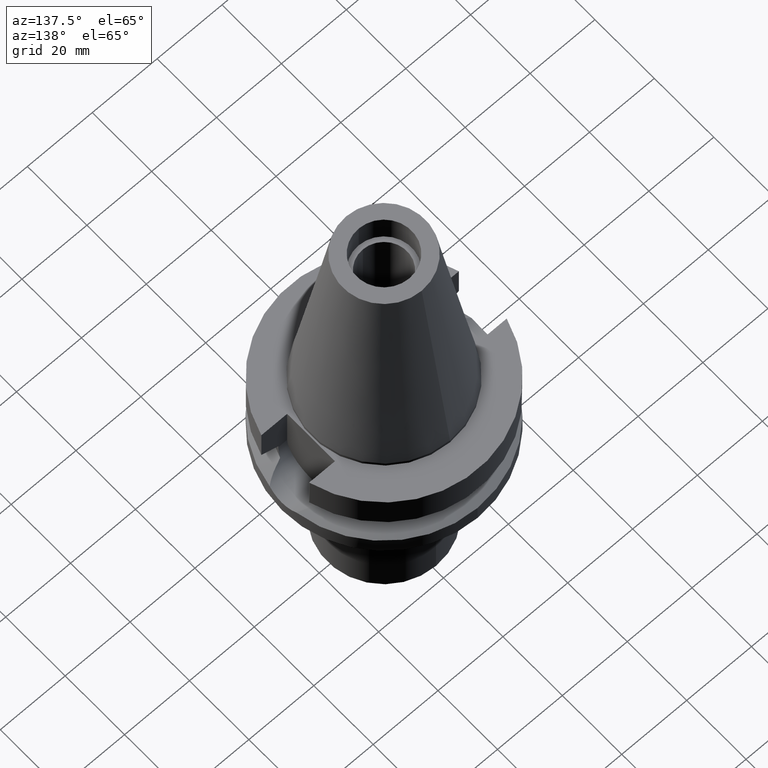
[diagram: clean part render]
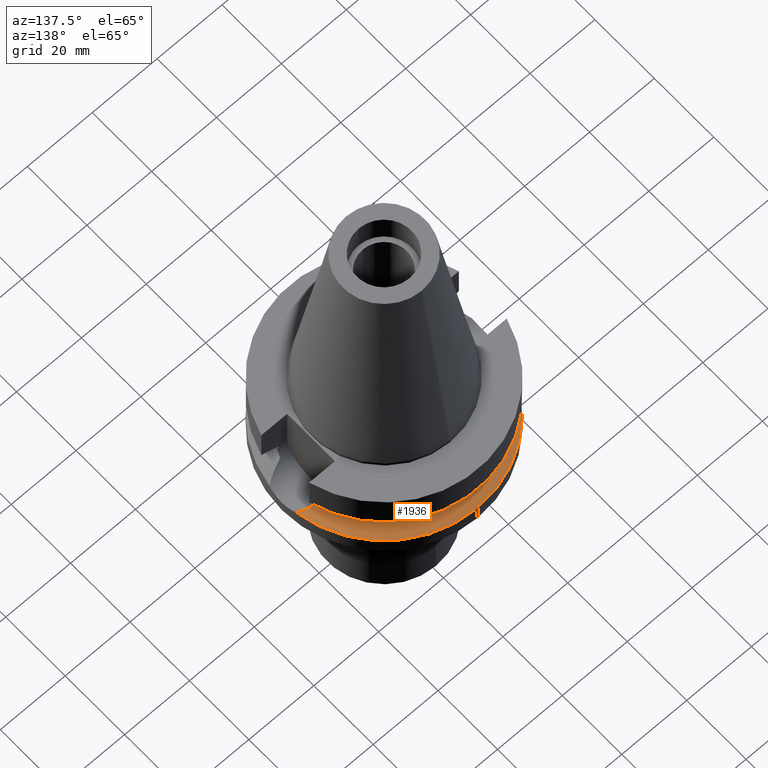
[diagram: same view with one face highlighted and labeled with its STEP entity id]
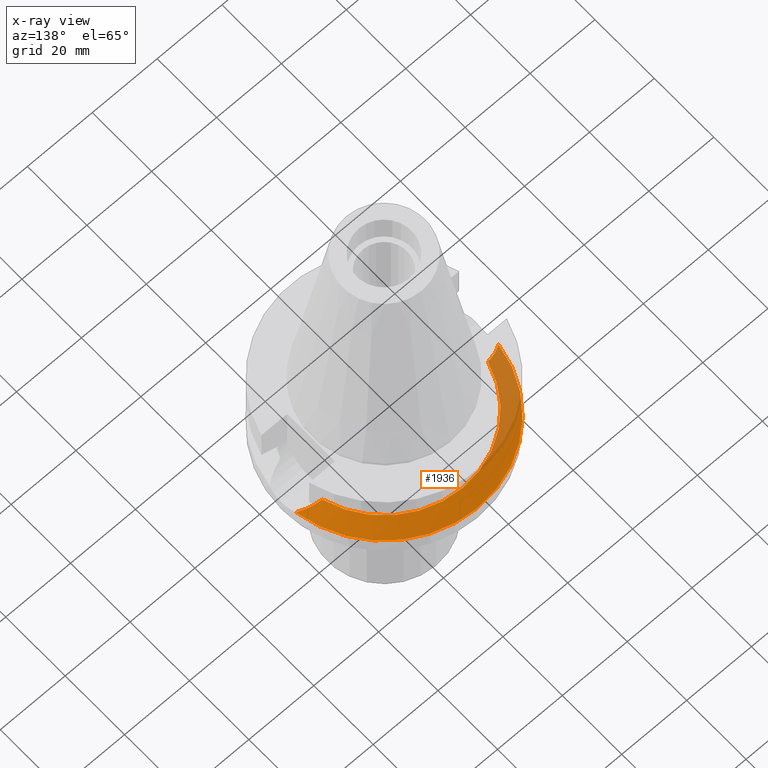
[diagram: x-ray of the same camera — body ghosted, the highlighted face saturated]
A machine part, auxiliary view. The second image highlights one B-rep face of the part: STEP entity #1936.
The next image is the same camera in x-ray: the body ghosted, the highlighted face saturated — about 24% of this face is hidden behind the body in this view.
In plain terms, the highlighted conical surface has half-angle 60 deg.
Its self-contained STEP definition (entity closure, byte-faithful):
#76 = DIRECTION ( 'NONE',  ( 0.0000000000000000000, 0.0000000000000000000, -1.000000000000000000 ) ) ;
#251 = CARTESIAN_POINT ( 'NONE',  ( 31.17899877608999759, 4.485536235554000051, -21.63449434733000132 ) ) ;
#267 = CARTESIAN_POINT ( 'NONE',  ( 29.91906490918152528, 5.320872908750365227, -20.99269629230230549 ) ) ;
#408 = CARTESIAN_POINT ( 'NONE',  ( -28.82825199919142278, 5.891281014482074418, -20.43595458910426999 ) ) ;
#419 = B_SPLINE_CURVE_WITH_KNOTS ( 'NONE', 3,
 ( #1332, #1345, #1070, #1823, #1533, #892, #2264, #1546, #2721, #1778, #408, #2037, #1130, #2987 ),
 .UNSPECIFIED., .F., .F.,
 ( 4, 2, 2, 1, 1, 2, 2, 4 ),
 ( 0.0000000000000000000, 0.2500000000000091038, 0.3750000000000131006, 0.4375000000000153211, 0.4687500000000163758, 0.4843750000000159872, 0.5000000000000155431, 1.000000000000000000 ),
 .UNSPECIFIED. ) ;
#451 = VERTEX_POINT ( 'NONE', #1471 ) ;
#500 = CARTESIAN_POINT ( 'NONE',  ( 29.40203501060996771, 5.604714292783638641, -20.72890338333808558 ) ) ;
#551 = CIRCLE ( 'NONE', #948, 26.49999999999998224 ) ;
#666 = FACE_OUTER_BOUND ( 'NONE', #1775, .T. ) ;
#672 = DIRECTION ( 'NONE',  ( 0.0000000000000000000, 0.0000000000000000000, 1.000000000000000000 ) ) ;
#687 = CARTESIAN_POINT ( 'NONE',  ( -25.53175183775000079, 7.097862220092999941, -18.74774300138999905 ) ) ;
#757 = CARTESIAN_POINT ( 'NONE',  ( 31.17899877608999759, 4.485536235554000051, -21.63449434733000132 ) ) ;
#763 = CARTESIAN_POINT ( 'NONE',  ( 29.07633984791581838, 5.770821603737155137, -20.56263473464893110 ) ) ;
#775 = CARTESIAN_POINT ( 'NONE',  ( 27.92028999709265946, 6.324879882284142774, -19.97228346030551549 ) ) ;
#777 = VERTEX_POINT ( 'NONE', #1408 ) ;
#823 = CARTESIAN_POINT ( 'NONE',  ( 0.0000000000000000000, 0.0000000000000000000, -21.63449434733000132 ) ) ;
#892 = CARTESIAN_POINT ( 'NONE',  ( -28.25133510219419719, 6.153028581121071205, -20.14132823897300995 ) ) ;
#907 = ORIENTED_EDGE ( 'NONE', *, *, #3012, .F. ) ;
#917 = CARTESIAN_POINT ( 'NONE',  ( 0.0000000000000000000, 0.0000000000000000000, -20.19111867435999841 ) ) ;
#931 = ORIENTED_EDGE ( 'NONE', *, *, #2014, .F. ) ;
#948 = AXIS2_PLACEMENT_3D ( 'NONE', #1968, #672, #2749 ) ;
#991 = CIRCLE ( 'NONE', #1077, 31.50000000000000000 ) ;
#995 = CARTESIAN_POINT ( 'NONE',  ( 30.50065599110355663, 4.971006141546016721, -21.28916918129043268 ) ) ;
#1011 = CARTESIAN_POINT ( 'NONE',  ( 0.0000000000000000000, 0.0000000000000000000, -21.63449434733000132 ) ) ;
#1070 = CARTESIAN_POINT ( 'NONE',  ( -26.77125516972780517, 6.727803922392449287, -19.38415420698211022 ) ) ;
#1077 = AXIS2_PLACEMENT_3D ( 'NONE', #1011, #1928, #2208 ) ;
#1130 = CARTESIAN_POINT ( 'NONE',  ( -30.53393337704365251, 4.974927128325873582, -21.30609544850640802 ) ) ;
#1205 = CARTESIAN_POINT ( 'NONE',  ( 26.81332912687537018, 6.745578584027821734, -19.40615003689864437 ) ) ;
#1267 = CONICAL_SURFACE ( 'NONE', #2285, 29.00000000000000000, 1.047197551196400456 ) ;
#1303 = VERTEX_POINT ( 'NONE', #2262 ) ;
#1326 = VERTEX_POINT ( 'NONE', #687 ) ;
#1332 = CARTESIAN_POINT ( 'NONE',  ( -25.53175183775000079, 7.097862220092999941, -18.74774300138999905 ) ) ;
#1345 = CARTESIAN_POINT ( 'NONE',  ( -26.17338029876361460, 6.921489550906338550, -19.07737797268839230 ) ) ;
#1391 = ORIENTED_EDGE ( 'NONE', *, *, #2824, .F. ) ;
#1408 = CARTESIAN_POINT ( 'NONE',  ( 0.0000000000000000000, 31.50000000000000000, -21.63449434733000132 ) ) ;
#1417 = CARTESIAN_POINT ( 'NONE',  ( 29.71710854929838774, 5.435695002503590167, -20.88968907523921459 ) ) ;
#1471 = CARTESIAN_POINT ( 'NONE',  ( 25.53175183775000079, 7.097862220092999941, -18.74774300138999905 ) ) ;
#1533 = CARTESIAN_POINT ( 'NONE',  ( -27.86855933404511987, 6.314559713585496503, -19.94574159089205523 ) ) ;
#1546 = CARTESIAN_POINT ( 'NONE',  ( -28.64994307967609544, 5.974988778435919912, -20.34490228502217235 ) ) ;
#1586 = DIRECTION ( 'NONE',  ( 0.0000000000000000000, 0.0000000000000000000, -1.000000000000000000 ) ) ;
#1600 = ORIENTED_EDGE ( 'NONE', *, *, #2978, .F. ) ;
#1681 = CARTESIAN_POINT ( 'NONE',  ( 28.91090597660869932, 5.851802960048926749, -20.47816081763841822 ) ) ;
#1775 = EDGE_LOOP ( 'NONE', ( #907, #1600, #2065, #931, #1391 ) ) ;
#1778 = CARTESIAN_POINT ( 'NONE',  ( -28.79798184817581586, 5.905639767122235817, -20.42049712109195170 ) ) ;
#1823 = CARTESIAN_POINT ( 'NONE',  ( -27.60243709110004318, 6.420032752898364059, -19.80966271865407435 ) ) ;
#1894 = CARTESIAN_POINT ( 'NONE',  ( 25.53175183775000079, 7.097862220092999941, -18.74774300138999905 ) ) ;
#1928 = DIRECTION ( 'NONE',  ( 0.0000000000000000000, 0.0000000000000000000, -1.000000000000000000 ) ) ;
#1936 = ADVANCED_FACE ( 'NONE', ( #666 ), #1267, .T. ) ;
#1955 = EDGE_CURVE ( 'NONE', #2506, #451, #2883, .T. ) ;
#1968 = CARTESIAN_POINT ( 'NONE',  ( 0.0000000000000000000, 0.0000000000000000000, -18.74774300138999905 ) ) ;
#1979 = DIRECTION ( 'NONE',  ( -0.9898094849552905306, 0.1423979757318985240, 0.0000000000000000000 ) ) ;
#2014 = EDGE_CURVE ( 'NONE', #777, #2506, #991, .T. ) ;
#2037 = CARTESIAN_POINT ( 'NONE',  ( -29.75976029275996382, 5.446137176546742786, -20.91164315040919064 ) ) ;
#2065 = ORIENTED_EDGE ( 'NONE', *, *, #1955, .F. ) ;
#2136 = CARTESIAN_POINT ( 'NONE',  ( 29.24146349154983682, 5.688420179755111938, -20.64694241441702616 ) ) ;
#2208 = DIRECTION ( 'NONE',  ( 0.0000000000000000000, 1.000000000000000000, 0.0000000000000000000 ) ) ;
#2262 = CARTESIAN_POINT ( 'NONE',  ( -31.17899877608999759, 4.485536235554000051, -21.63449434733000132 ) ) ;
#2264 = CARTESIAN_POINT ( 'NONE',  ( -28.43862108720161075, 6.071431631962515674, -20.23699006869577133 ) ) ;
#2285 = AXIS2_PLACEMENT_3D ( 'NONE', #917, #1586, #2521 ) ;
#2287 = AXIS2_PLACEMENT_3D ( 'NONE', #823, #76, #1979 ) ;
#2438 = CIRCLE ( 'NONE', #2287, 31.50000000000001421 ) ;
#2506 = VERTEX_POINT ( 'NONE', #757 ) ;
#2521 = DIRECTION ( 'NONE',  ( 0.0000000000000000000, -1.000000000000000000, 0.0000000000000000000 ) ) ;
#2619 = CARTESIAN_POINT ( 'NONE',  ( 30.85601271541506208, 4.730575632826347743, -21.47006409449871711 ) ) ;
#2721 = CARTESIAN_POINT ( 'NONE',  ( -28.73897143572930091, 5.933410669245896329, -20.39036374160497189 ) ) ;
#2749 = DIRECTION ( 'NONE',  ( 0.9634623335000935818, 0.2678438573619981722, 0.0000000000000000000 ) ) ;
#2824 = EDGE_CURVE ( 'NONE', #1303, #777, #2438, .T. ) ;
#2870 = CARTESIAN_POINT ( 'NONE',  ( 28.96524583558782950, 5.825454863019252194, -20.50590913223682321 ) ) ;
#2883 = B_SPLINE_CURVE_WITH_KNOTS ( 'NONE', 3,
 ( #251, #2619, #995, #267, #1417, #500, #2136, #763, #2870, #1681, #775, #1205, #1894 ),
 .UNSPECIFIED., .F., .F.,
 ( 4, 2, 2, 1, 2, 2, 4 ),
 ( 0.0000000000000000000, 0.2500000000000062728, 0.3750000000000087153, 0.4375000000000097700, 0.4687500000000099365, 0.5000000000000101030, 1.000000000000000000 ),
 .UNSPECIFIED. ) ;
#2978 = EDGE_CURVE ( 'NONE', #451, #1326, #551, .T. ) ;
#2987 = CARTESIAN_POINT ( 'NONE',  ( -31.17899877608999759, 4.485536235554000051, -21.63449434733000132 ) ) ;
#3012 = EDGE_CURVE ( 'NONE', #1326, #1303, #419, .T. ) ;